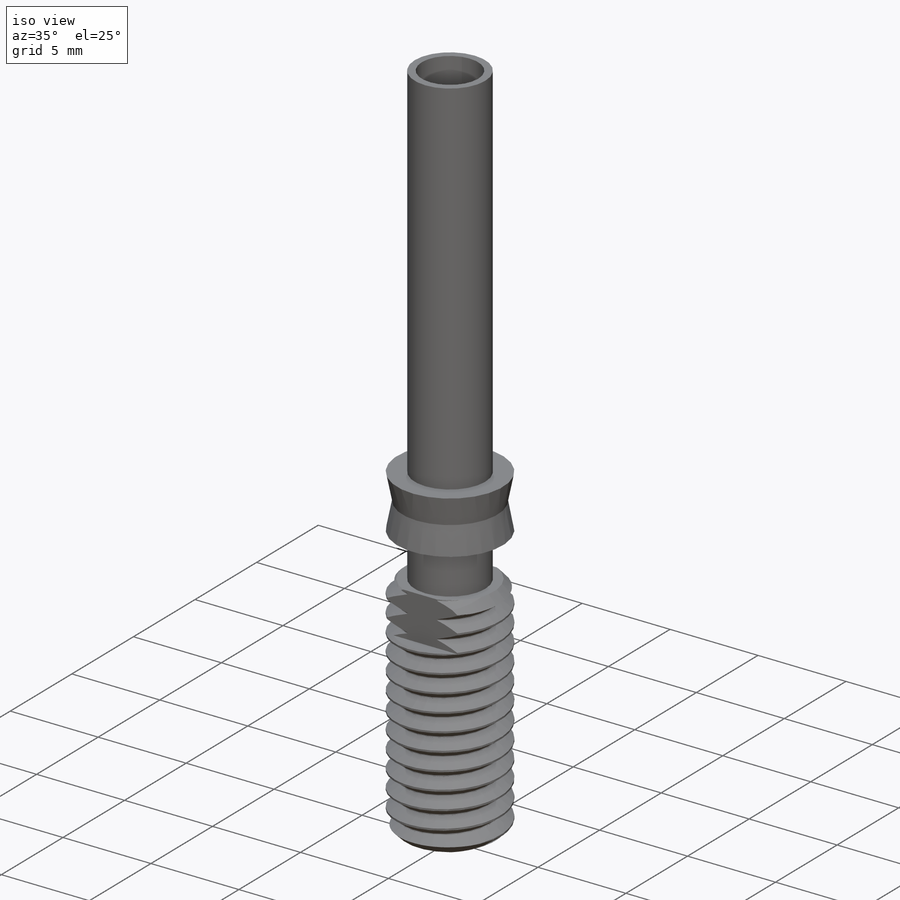
[diagram: iso view]
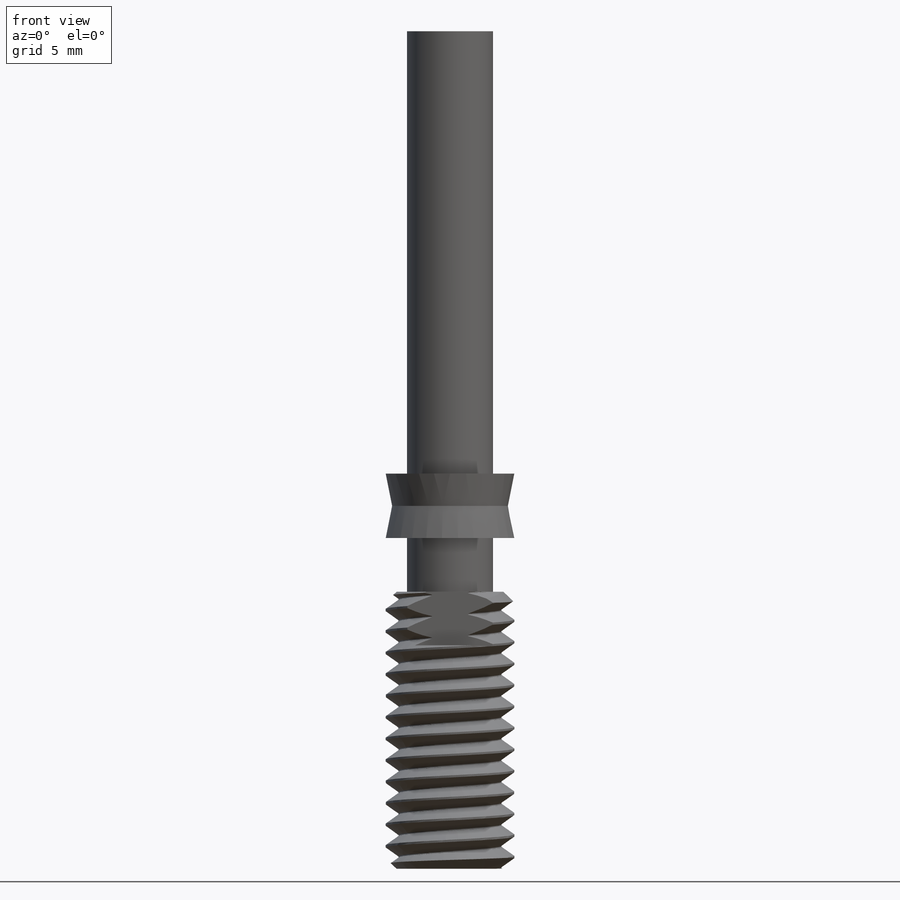
[diagram: front view]
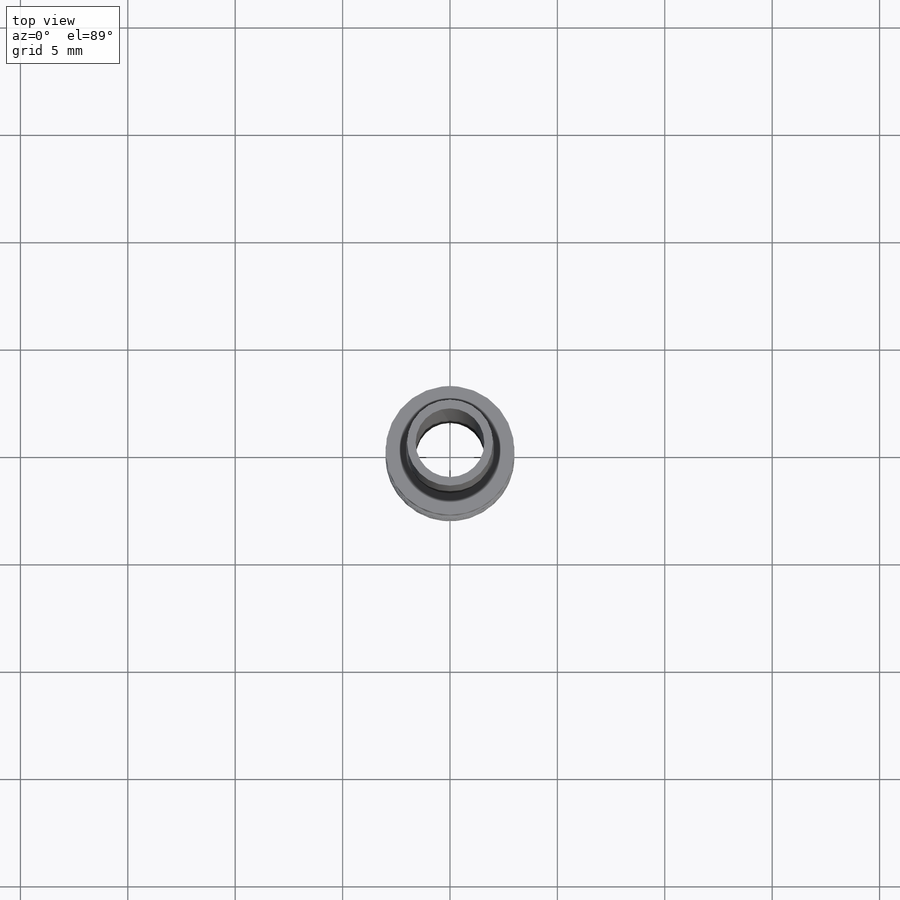
[diagram: top view]
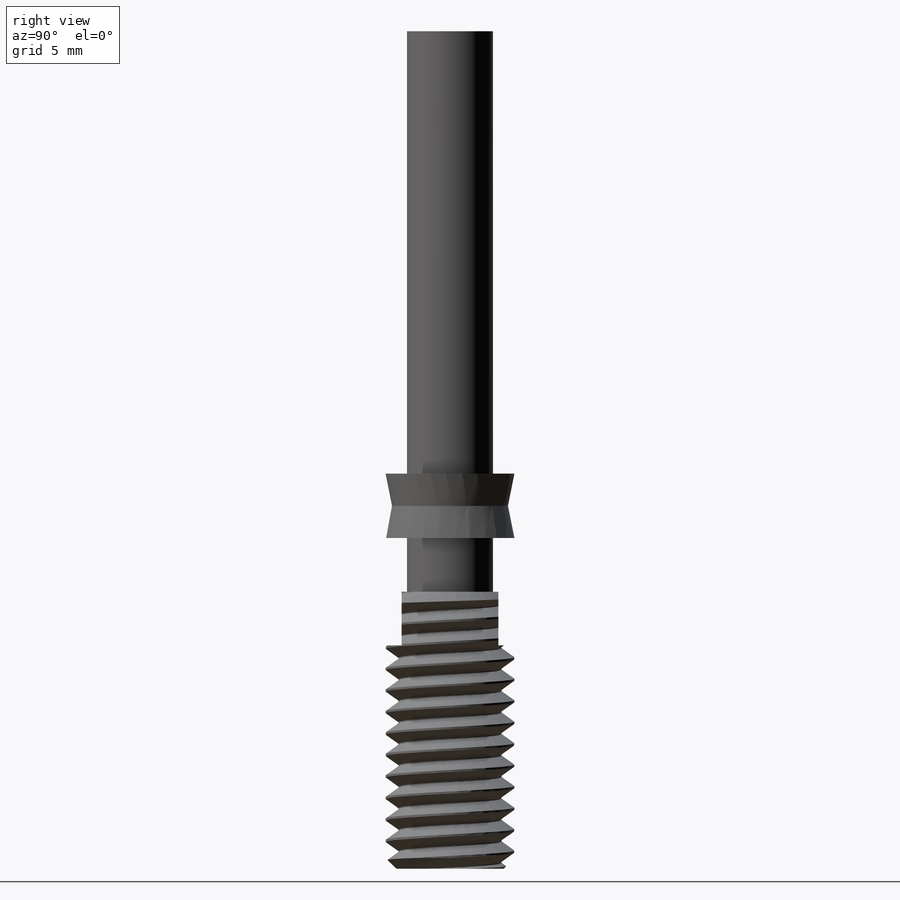
[diagram: right view]
SOLIDWORKS PART (.sldprt)
format: sldprt  version: not decoded by parser v0  size: 577,536 bytes
history: native  units: mm
features: sketch x4, material x1, revolve x1, helix x1, plane x1, sweep x1, cut_extrude x1 (+11 scaffold rows collapsed)
feature tree (21):
  scaffold x11  (default folders/planes/origin — collapsed)
  material  "Plain Carbon Steel"
  sketch  "Sketch1"  dims[D1=3.2mm D2=4.0mm D3=39.0mm D4=6.0mm D5=6.0mm D6=3.0mm D7=0.3mm D8=2.5mm D9=12.9mm]
  revolve  "Revolve1"  Angle=360deg
  sketch  "Sketch2"
  helix  "Helix/Spiral1"  Pitch=13.5mm
  plane  "Plane1"
  sketch  "Sketch3"  dims[D1=0.05mm D2=0.9mm D3=0.6mm]
  sweep  "Cut-Sweep1"
  sketch  "Sketch4"  dims[D1=4.5mm]
  cut_extrude  "Cut-Extrude1"  Depth=2.5mm
decode coverage: 6 of 8 modeling features carry decoded parameters
note: suppression state not decoded; provenance and decode notes live in map.json
